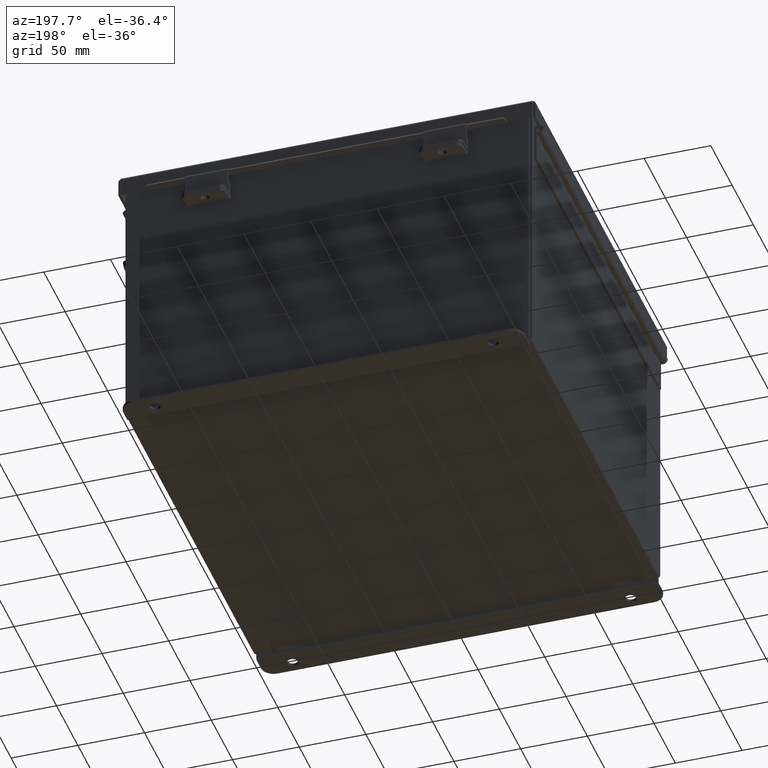
[diagram: clean part render]
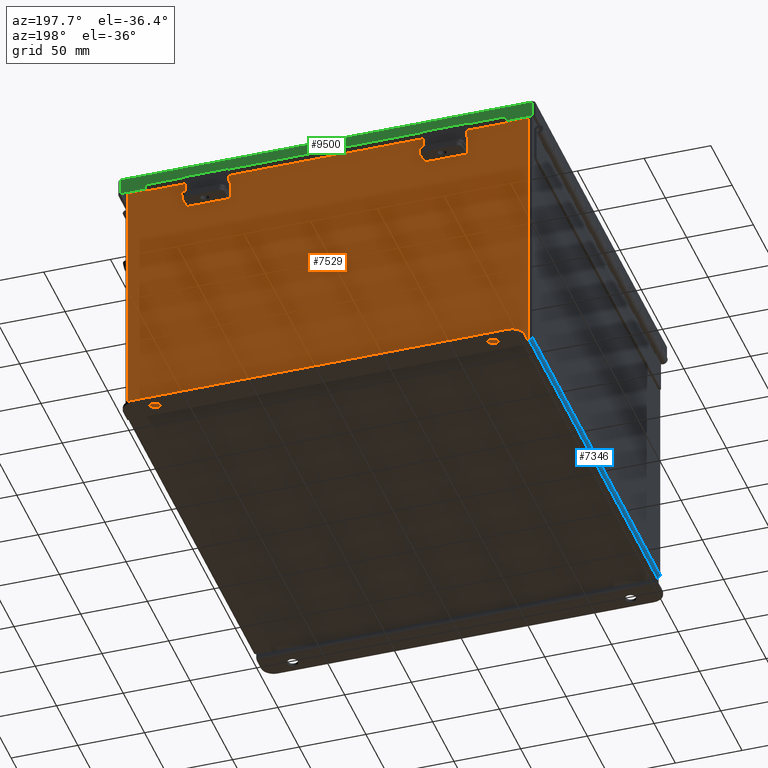
[diagram: same view with three faces highlighted in distinct colors, each labeled with its STEP entity id]
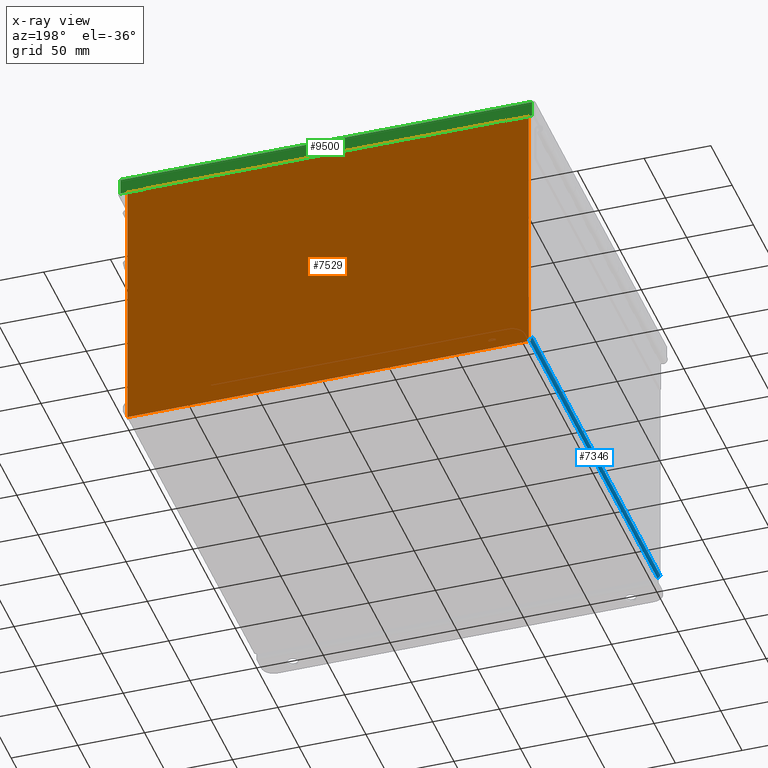
[diagram: x-ray of the same camera — body ghosted, the three highlighted faces saturated]
A machine part, auxiliary view with three faces highlighted in distinct colors.
The next image is the same camera in x-ray (body ghosted, the three faces saturated) — at least one of them is partly hidden behind the body in this view.
Their STEP definitions:

[orange] entity #7529 — the highlighted planar face has unit normal (0, -1, 0).
#30 = LINE ( 'NONE', #17468, #17503 ) ;
#148 = VERTEX_POINT ( 'NONE', #6689 ) ;
#186 = PLANE ( 'NONE',  #2346 ) ;
#289 = EDGE_CURVE ( 'NONE', #148, #4016, #30, .T. ) ;
#360 = VERTEX_POINT ( 'NONE', #8986 ) ;
#683 = VERTEX_POINT ( 'NONE', #6285 ) ;
#903 = DIRECTION ( 'NONE',  ( 0.0000000000000000000, 0.0000000000000000000, -1.000000000000000000 ) ) ;
#1287 = CARTESIAN_POINT ( 'NONE',  ( -5.925300000000001800, 0.0000000000000000000, 3.925299999999999600 ) ) ;
#1379 = DIRECTION ( 'NONE',  ( 0.0000000000000000000, 0.0000000000000000000, 1.000000000000000000 ) ) ;
#1441 = DIRECTION ( 'NONE',  ( 0.0000000000000000000, -0.0000000000000000000, -1.000000000000000000 ) ) ;
#2036 = DIRECTION ( 'NONE',  ( -0.0000000000000000000, 1.000000000000000000, -0.0000000000000000000 ) ) ;
#2168 = VECTOR ( 'NONE', #14634, 39.37007874015748100 ) ;
#2185 = CARTESIAN_POINT ( 'NONE',  ( -5.582300000000000900, 2.185478394931410600E-015, 3.912299999999998800 ) ) ;
#2269 = ORIENTED_EDGE ( 'NONE', *, *, #8044, .T. ) ;
#2346 = AXIS2_PLACEMENT_3D ( 'NONE', #15391, #8791, #1441 ) ;
#2604 = CARTESIAN_POINT ( 'NONE',  ( 5.619649999999998300, 0.0000000000000000000, 3.874949999999998300 ) ) ;
#2973 = LINE ( 'NONE', #16742, #17248 ) ;
#3241 = DIRECTION ( 'NONE',  ( -0.0000000000000000000, 1.000000000000000000, -0.0000000000000000000 ) ) ;
#3813 = CARTESIAN_POINT ( 'NONE',  ( -5.925300000000001800, 0.0000000000000000000, 3.925299999999999600 ) ) ;
#3878 = EDGE_CURVE ( 'NONE', #6510, #6955, #16905, .T. ) ;
#4016 = VERTEX_POINT ( 'NONE', #17597 ) ;
#4087 = EDGE_CURVE ( 'NONE', #5332, #4016, #17114, .T. ) ;
#4160 = CARTESIAN_POINT ( 'NONE',  ( -5.619650000000000000, 0.0000000000000000000, 0.0000000000000000000 ) ) ;
#4175 = VECTOR ( 'NONE', #9428, 39.37007874015748100 ) ;
#4345 = DIRECTION ( 'NONE',  ( 1.000000000000000000, 0.0000000000000000000, 4.610480471308225700E-017 ) ) ;
#4639 = LINE ( 'NONE', #7894, #7869 ) ;
#4854 = CARTESIAN_POINT ( 'NONE',  ( 5.582299999999999200, 0.0000000000000000000, 3.912299999999998800 ) ) ;
#5068 = CARTESIAN_POINT ( 'NONE',  ( -5.619650000000000000, 0.0000000000000000000, 3.874949999999998300 ) ) ;
#5130 = ORIENTED_EDGE ( 'NONE', *, *, #7701, .F. ) ;
#5332 = VERTEX_POINT ( 'NONE', #13482 ) ;
#5436 = VECTOR ( 'NONE', #7773, 39.37007874015748100 ) ;
#5550 = ORIENTED_EDGE ( 'NONE', *, *, #12943, .F. ) ;
#5820 = LINE ( 'NONE', #2185, #2168 ) ;
#6169 = VERTEX_POINT ( 'NONE', #13822 ) ;
#6285 = CARTESIAN_POINT ( 'NONE',  ( -5.619650000000000000, 0.0000000000000000000, 3.925299999999999600 ) ) ;
#6510 = VERTEX_POINT ( 'NONE', #7494 ) ;
#6651 = ORIENTED_EDGE ( 'NONE', *, *, #4087, .F. ) ;
#6689 = CARTESIAN_POINT ( 'NONE',  ( 5.925299999999999100, 0.0000000000000000000, 3.925299999999999600 ) ) ;
#6764 = DIRECTION ( 'NONE',  ( 1.000000000000000000, 0.0000000000000000000, 4.610480471308225700E-017 ) ) ;
#6942 = CIRCLE ( 'NONE', #12318, 0.01867500000000003900 ) ;
#6955 = VERTEX_POINT ( 'NONE', #2604 ) ;
#7494 = CARTESIAN_POINT ( 'NONE',  ( 5.619650000000000000, 0.0000000000000000000, 3.925299999999999600 ) ) ;
#7502 = ORIENTED_EDGE ( 'NONE', *, *, #14782, .F. ) ;
#7529 = ADVANCED_FACE ( 'NONE', ( #14806 ), #186, .F. ) ;
#7701 = EDGE_CURVE ( 'NONE', #6169, #17445, #16758, .T. ) ;
#7773 = DIRECTION ( 'NONE',  ( -2.170286390199955400E-014, 0.0000000000000000000, -1.000000000000000000 ) ) ;
#7869 = VECTOR ( 'NONE', #16187, 39.37007874015748100 ) ;
#7894 = CARTESIAN_POINT ( 'NONE',  ( -5.925300000000001800, 0.0000000000000000000, 3.925299999999999600 ) ) ;
#8044 = EDGE_CURVE ( 'NONE', #5332, #10064, #4639, .T. ) ;
#8079 = CARTESIAN_POINT ( 'NONE',  ( -5.600975000000000000, 0.0000000000000000000, 3.874949999999998300 ) ) ;
#8552 = LINE ( 'NONE', #11011, #15496 ) ;
#8668 = LINE ( 'NONE', #3813, #15606 ) ;
#8756 = ORIENTED_EDGE ( 'NONE', *, *, #9516, .T. ) ;
#8791 = DIRECTION ( 'NONE',  ( 0.0000000000000000000, -1.000000000000000000, 0.0000000000000000000 ) ) ;
#8986 = CARTESIAN_POINT ( 'NONE',  ( -5.582300000000000000, 2.185478394931410600E-015, 3.912299999999998800 ) ) ;
#9174 = LINE ( 'NONE', #4160, #12882 ) ;
#9211 = ORIENTED_EDGE ( 'NONE', *, *, #10862, .T. ) ;
#9428 = DIRECTION ( 'NONE',  ( 0.0000000000000000000, 0.0000000000000000000, 1.000000000000000000 ) ) ;
#9516 = EDGE_CURVE ( 'NONE', #10064, #683, #8668, .T. ) ;
#9707 = EDGE_CURVE ( 'NONE', #6955, #11082, #6942, .T. ) ;
#9890 = ORIENTED_EDGE ( 'NONE', *, *, #16951, .F. ) ;
#9919 = DIRECTION ( 'NONE',  ( 1.000000000000000000, 8.208677865577646300E-017, -0.0000000000000000000 ) ) ;
#10064 = VERTEX_POINT ( 'NONE', #1287 ) ;
#10312 = CARTESIAN_POINT ( 'NONE',  ( 5.600974999999998300, 0.0000000000000000000, 3.874949999999998300 ) ) ;
#10521 = EDGE_CURVE ( 'NONE', #360, #16170, #5820, .T. ) ;
#10714 = ORIENTED_EDGE ( 'NONE', *, *, #3878, .F. ) ;
#10862 = EDGE_CURVE ( 'NONE', #6510, #148, #2973, .T. ) ;
#11011 = CARTESIAN_POINT ( 'NONE',  ( -5.582300000000000000, 0.0000000000000000000, 0.0000000000000000000 ) ) ;
#11082 = VERTEX_POINT ( 'NONE', #11664 ) ;
#11537 = LINE ( 'NONE', #16403, #4175 ) ;
#11664 = CARTESIAN_POINT ( 'NONE',  ( 5.582299999999999200, 0.0000000000000000000, 3.874949999999998300 ) ) ;
#11704 = DIRECTION ( 'NONE',  ( 0.0000000000000000000, 0.0000000000000000000, -1.000000000000000000 ) ) ;
#12068 = ORIENTED_EDGE ( 'NONE', *, *, #289, .T. ) ;
#12084 = EDGE_LOOP ( 'NONE', ( #5550, #5130, #7502, #13543, #9890, #16819, #10714, #9211, #12068, #6651, #2269, #8756 ) ) ;
#12259 = DIRECTION ( 'NONE',  ( 0.0000000000000000000, 0.0000000000000000000, -1.000000000000000000 ) ) ;
#12318 = AXIS2_PLACEMENT_3D ( 'NONE', #10312, #2036, #11704 ) ;
#12398 = DIRECTION ( 'NONE',  ( 0.0000000000000000000, 0.0000000000000000000, -1.000000000000000000 ) ) ;
#12882 = VECTOR ( 'NONE', #1379, 39.37007874015748100 ) ;
#12943 = EDGE_CURVE ( 'NONE', #17445, #683, #9174, .T. ) ;
#13017 = VECTOR ( 'NONE', #9919, 39.37007874015748100 ) ;
#13474 = AXIS2_PLACEMENT_3D ( 'NONE', #8079, #3241, #12259 ) ;
#13482 = CARTESIAN_POINT ( 'NONE',  ( -5.925300000000000000, -1.092739197465705300E-015, -4.099300000000000400 ) ) ;
#13543 = ORIENTED_EDGE ( 'NONE', *, *, #10521, .T. ) ;
#13822 = CARTESIAN_POINT ( 'NONE',  ( -5.582300000000000000, 0.0000000000000000000, 3.874949999999998300 ) ) ;
#14485 = CARTESIAN_POINT ( 'NONE',  ( 5.619649999999914800, 0.0000000000000000000, -1.218404205174261500E-013 ) ) ;
#14634 = DIRECTION ( 'NONE',  ( 1.000000000000000000, 0.0000000000000000000, 0.0000000000000000000 ) ) ;
#14782 = EDGE_CURVE ( 'NONE', #360, #6169, #8552, .T. ) ;
#14806 = FACE_OUTER_BOUND ( 'NONE', #12084, .T. ) ;
#15391 = CARTESIAN_POINT ( 'NONE',  ( 0.0000000000000000000, 0.0000000000000000000, 0.0000000000000000000 ) ) ;
#15496 = VECTOR ( 'NONE', #12398, 39.37007874015748100 ) ;
#15606 = VECTOR ( 'NONE', #6764, 39.37007874015748100 ) ;
#16170 = VERTEX_POINT ( 'NONE', #4854 ) ;
#16187 = DIRECTION ( 'NONE',  ( -0.0000000000000000000, -0.0000000000000000000, 1.000000000000000000 ) ) ;
#16403 = CARTESIAN_POINT ( 'NONE',  ( 5.582299999999999200, 0.0000000000000000000, 0.0000000000000000000 ) ) ;
#16742 = CARTESIAN_POINT ( 'NONE',  ( -5.925300000000001800, 0.0000000000000000000, 3.925299999999999600 ) ) ;
#16758 = CIRCLE ( 'NONE', #13474, 0.01867500000000003900 ) ;
#16819 = ORIENTED_EDGE ( 'NONE', *, *, #9707, .F. ) ;
#16905 = LINE ( 'NONE', #14485, #5436 ) ;
#16951 = EDGE_CURVE ( 'NONE', #11082, #16170, #11537, .T. ) ;
#17114 = LINE ( 'NONE', #17828, #13017 ) ;
#17248 = VECTOR ( 'NONE', #4345, 39.37007874015748100 ) ;
#17445 = VERTEX_POINT ( 'NONE', #5068 ) ;
#17468 = CARTESIAN_POINT ( 'NONE',  ( 5.925299999999999100, 0.0000000000000000000, 3.925299999999999600 ) ) ;
#17503 = VECTOR ( 'NONE', #903, 39.37007874015748100 ) ;
#17597 = CARTESIAN_POINT ( 'NONE',  ( 5.925299999999999100, 0.0000000000000000000, -4.099300000000000400 ) ) ;
#17828 = CARTESIAN_POINT ( 'NONE',  ( -5.925300000000001800, -1.092739197465705300E-015, -4.099300000000000400 ) ) ;

[blue] entity #7346 — the highlighted cylindrical surface (edge-blend (fillet) strip) has radius 2.2276 mm, axis along (0, -1, 0).
#112 = FACE_OUTER_BOUND ( 'NONE', #13552, .T. ) ;
#2317 = DIRECTION ( 'NONE',  ( -1.000000000000000000, 0.0000000000000000000, -3.480030137311043200E-015 ) ) ;
#2412 = EDGE_CURVE ( 'NONE', #13531, #4963, #12267, .T. ) ;
#2809 = CARTESIAN_POINT ( 'NONE',  ( -5.912299999999998300, -5.925299999999999100, -0.07469999999999994700 ) ) ;
#2824 = ORIENTED_EDGE ( 'NONE', *, *, #16659, .F. ) ;
#3020 = VERTEX_POINT ( 'NONE', #2809 ) ;
#3098 = CARTESIAN_POINT ( 'NONE',  ( -5.912299999999998300, -5.925299999999999100, 0.01300000000000015000 ) ) ;
#4282 = CARTESIAN_POINT ( 'NONE',  ( -5.912299999999998300, 5.925300000000000000, 0.01300000000000015000 ) ) ;
#4489 = DIRECTION ( 'NONE',  ( 0.0000000000000000000, 0.0000000000000000000, -1.000000000000000000 ) ) ;
#4610 = CARTESIAN_POINT ( 'NONE',  ( -5.999999999999998200, 5.925300000000000000, 0.01299999999999984300 ) ) ;
#4963 = VERTEX_POINT ( 'NONE', #4610 ) ;
#5267 = CIRCLE ( 'NONE', #5470, 0.08770000000000009700 ) ;
#5470 = AXIS2_PLACEMENT_3D ( 'NONE', #3098, #12767, #4489 ) ;
#5530 = EDGE_CURVE ( 'NONE', #3020, #13531, #12118, .T. ) ;
#5616 = VECTOR ( 'NONE', #15226, 39.37007874015748100 ) ;
#5908 = LINE ( 'NONE', #11958, #8728 ) ;
#6063 = CARTESIAN_POINT ( 'NONE',  ( -5.912299999999998300, -5.925300000000000000, -0.07469999999999994700 ) ) ;
#6172 = DIRECTION ( 'NONE',  ( 0.0000000000000000000, -1.000000000000000000, 0.0000000000000000000 ) ) ;
#7080 = DIRECTION ( 'NONE',  ( 0.0000000000000000000, 0.0000000000000000000, -1.000000000000000000 ) ) ;
#7346 = ADVANCED_FACE ( 'NONE', ( #112 ), #13918, .T. ) ;
#7989 = EDGE_CURVE ( 'NONE', #13252, #4963, #5908, .T. ) ;
#8232 = AXIS2_PLACEMENT_3D ( 'NONE', #15926, #6172, #2317 ) ;
#8728 = VECTOR ( 'NONE', #9155, 39.37007874015748100 ) ;
#9155 = DIRECTION ( 'NONE',  ( -0.0000000000000000000, 1.000000000000000000, -0.0000000000000000000 ) ) ;
#11706 = ORIENTED_EDGE ( 'NONE', *, *, #5530, .F. ) ;
#11921 = AXIS2_PLACEMENT_3D ( 'NONE', #4282, #17176, #7080 ) ;
#11958 = CARTESIAN_POINT ( 'NONE',  ( -5.999999999999998200, 5.925300000000000000, 0.01299999999999984300 ) ) ;
#12118 = LINE ( 'NONE', #6063, #5616 ) ;
#12267 = CIRCLE ( 'NONE', #11921, 0.08770000000000009700 ) ;
#12568 = ORIENTED_EDGE ( 'NONE', *, *, #7989, .T. ) ;
#12767 = DIRECTION ( 'NONE',  ( 0.0000000000000000000, -1.000000000000000000, 0.0000000000000000000 ) ) ;
#13108 = CARTESIAN_POINT ( 'NONE',  ( -5.999999999999998200, -5.925299999999999100, 0.01299999999999984300 ) ) ;
#13252 = VERTEX_POINT ( 'NONE', #13108 ) ;
#13531 = VERTEX_POINT ( 'NONE', #15095 ) ;
#13552 = EDGE_LOOP ( 'NONE', ( #11706, #2824, #12568, #14083 ) ) ;
#13918 = CYLINDRICAL_SURFACE ( 'NONE', #8232, 0.08770000000000026400 ) ;
#14083 = ORIENTED_EDGE ( 'NONE', *, *, #2412, .F. ) ;
#15095 = CARTESIAN_POINT ( 'NONE',  ( -5.912299999999998300, 5.925300000000000000, -0.07470000000000000300 ) ) ;
#15226 = DIRECTION ( 'NONE',  ( -0.0000000000000000000, 1.000000000000000000, -0.0000000000000000000 ) ) ;
#15926 = CARTESIAN_POINT ( 'NONE',  ( -5.912299999999998300, -5.925300000000000000, 0.01300000000000015000 ) ) ;
#16659 = EDGE_CURVE ( 'NONE', #13252, #3020, #5267, .T. ) ;
#17176 = DIRECTION ( 'NONE',  ( -0.0000000000000000000, 1.000000000000000000, -0.0000000000000000000 ) ) ;

[green] entity #9500 — the highlighted planar face has unit normal (-0, -1, -0).
#471 = ORIENTED_EDGE ( 'NONE', *, *, #3509, .F. ) ;
#473 = DIRECTION ( 'NONE',  ( 0.0000000000000000000, 0.0000000000000000000, 1.000000000000000000 ) ) ;
#1221 = ORIENTED_EDGE ( 'NONE', *, *, #7863, .T. ) ;
#1359 = EDGE_CURVE ( 'NONE', #17019, #10824, #7756, .T. ) ;
#1385 = LINE ( 'NONE', #9242, #4634 ) ;
#1821 = CARTESIAN_POINT ( 'NONE',  ( -5.324478932188133000, 6.156250000000002700, 0.4717115427318789300 ) ) ;
#1893 = CARTESIAN_POINT ( 'NONE',  ( 6.156249999999998200, 6.156250000000000000, 0.01299999999999978100 ) ) ;
#2238 = ORIENTED_EDGE ( 'NONE', *, *, #12291, .F. ) ;
#2361 = CARTESIAN_POINT ( 'NONE',  ( 6.074478932188137400, 6.156250000000000000, -3.350199796867980800E-016 ) ) ;
#2597 = DIRECTION ( 'NONE',  ( -2.487713722829918300E-032, -1.000000000000000000, 4.484872552701437000E-015 ) ) ;
#2850 = CARTESIAN_POINT ( 'NONE',  ( 5.324478932188134700, 6.156250000000003600, 0.4717115427318789300 ) ) ;
#3509 = EDGE_CURVE ( 'NONE', #16043, #6073, #10644, .T. ) ;
#3531 = CARTESIAN_POINT ( 'NONE',  ( 1.055630439947707600E-017, 6.156250000000002700, 0.4872999999999997900 ) ) ;
#3565 = VECTOR ( 'NONE', #6901, 39.37007874015748100 ) ;
#3597 = VECTOR ( 'NONE', #12135, 39.37007874015748100 ) ;
#3820 = DIRECTION ( 'NONE',  ( 0.0000000000000000000, 4.484872552701437000E-015, 1.000000000000000000 ) ) ;
#3917 = CARTESIAN_POINT ( 'NONE',  ( 5.324478932188135600, 6.156250000000003600, 0.4717115427318789300 ) ) ;
#3983 = AXIS2_PLACEMENT_3D ( 'NONE', #5325, #2597, #12276 ) ;
#4082 = VECTOR ( 'NONE', #7743, 39.37007874015748100 ) ;
#4634 = VECTOR ( 'NONE', #3820, 39.37007874015748100 ) ;
#4694 = VECTOR ( 'NONE', #9627, 39.37007874015748100 ) ;
#5325 = CARTESIAN_POINT ( 'NONE',  ( 1.325930851584798300E-017, 6.156250000000000000, -2.787081030857980400E-014 ) ) ;
#5598 = DIRECTION ( 'NONE',  ( -0.0000000000000000000, 4.484872552701437000E-015, 1.000000000000000000 ) ) ;
#6073 = VERTEX_POINT ( 'NONE', #14799 ) ;
#6428 = EDGE_CURVE ( 'NONE', #10952, #15924, #17491, .T. ) ;
#6901 = DIRECTION ( 'NONE',  ( 1.000000000000000000, 0.0000000000000000000, 5.546899479521349200E-018 ) ) ;
#7058 = ORIENTED_EDGE ( 'NONE', *, *, #7266, .T. ) ;
#7072 = EDGE_CURVE ( 'NONE', #17019, #15924, #7225, .T. ) ;
#7225 = LINE ( 'NONE', #3531, #3565 ) ;
#7247 = CARTESIAN_POINT ( 'NONE',  ( 6.074478932188137400, 6.156250000000000000, 0.01299999999999977400 ) ) ;
#7266 = EDGE_CURVE ( 'NONE', #11067, #15462, #1385, .T. ) ;
#7721 = ORIENTED_EDGE ( 'NONE', *, *, #6428, .F. ) ;
#7743 = DIRECTION ( 'NONE',  ( 0.0000000000000000000, -7.009925220120992500E-014, -1.000000000000000000 ) ) ;
#7756 = LINE ( 'NONE', #9059, #4082 ) ;
#7863 = EDGE_CURVE ( 'NONE', #15462, #6073, #11343, .T. ) ;
#9059 = CARTESIAN_POINT ( 'NONE',  ( 5.324478932188134700, 6.156250000000004400, 0.4872999999999985700 ) ) ;
#9111 = FACE_OUTER_BOUND ( 'NONE', #13976, .T. ) ;
#9242 = CARTESIAN_POINT ( 'NONE',  ( -6.074478932188137400, 6.156250000000000000, -2.787081030857980400E-014 ) ) ;
#9500 = ADVANCED_FACE ( 'NONE', ( #9111 ), #10883, .F. ) ;
#9627 = DIRECTION ( 'NONE',  ( 1.000000000000000000, -2.487713722829918300E-032, 1.089533968265403200E-046 ) ) ;
#10582 = VECTOR ( 'NONE', #5598, 39.37007874015748100 ) ;
#10644 = LINE ( 'NONE', #16853, #13877 ) ;
#10824 = VERTEX_POINT ( 'NONE', #2850 ) ;
#10883 = PLANE ( 'NONE',  #3983 ) ;
#10945 = LINE ( 'NONE', #3917, #3597 ) ;
#10952 = VERTEX_POINT ( 'NONE', #7247 ) ;
#11067 = VERTEX_POINT ( 'NONE', #17159 ) ;
#11234 = EDGE_CURVE ( 'NONE', #11067, #10952, #12031, .T. ) ;
#11343 = LINE ( 'NONE', #12017, #12656 ) ;
#11477 = DIRECTION ( 'NONE',  ( 1.000000000000000000, 0.0000000000000000000, 5.546899479521349200E-018 ) ) ;
#11579 = CARTESIAN_POINT ( 'NONE',  ( -6.074478932188137400, 6.156250000000002700, 0.4872999999999997300 ) ) ;
#12017 = CARTESIAN_POINT ( 'NONE',  ( 1.055630439947707600E-017, 6.156250000000002700, 0.4872999999999997900 ) ) ;
#12031 = LINE ( 'NONE', #1893, #4694 ) ;
#12135 = DIRECTION ( 'NONE',  ( -1.000000000000000000, -0.0000000000000000000, -0.0000000000000000000 ) ) ;
#12276 = DIRECTION ( 'NONE',  ( 0.0000000000000000000, -4.484872552701437000E-015, -1.000000000000000000 ) ) ;
#12291 = EDGE_CURVE ( 'NONE', #10824, #16043, #10945, .T. ) ;
#12450 = CARTESIAN_POINT ( 'NONE',  ( 5.324478932188134700, 6.156250000000002700, 0.4872999999999997900 ) ) ;
#12656 = VECTOR ( 'NONE', #11477, 39.37007874015748100 ) ;
#13852 = ORIENTED_EDGE ( 'NONE', *, *, #11234, .F. ) ;
#13869 = ORIENTED_EDGE ( 'NONE', *, *, #1359, .F. ) ;
#13877 = VECTOR ( 'NONE', #473, 39.37007874015748100 ) ;
#13976 = EDGE_LOOP ( 'NONE', ( #13869, #15365, #7721, #13852, #7058, #1221, #471, #2238 ) ) ;
#13980 = CARTESIAN_POINT ( 'NONE',  ( 6.074478932188137400, 6.156250000000002700, 0.4872999999999997900 ) ) ;
#14799 = CARTESIAN_POINT ( 'NONE',  ( -5.324478932188132100, 6.156250000000002700, 0.4872999999999997900 ) ) ;
#15365 = ORIENTED_EDGE ( 'NONE', *, *, #7072, .T. ) ;
#15462 = VERTEX_POINT ( 'NONE', #11579 ) ;
#15924 = VERTEX_POINT ( 'NONE', #13980 ) ;
#16043 = VERTEX_POINT ( 'NONE', #1821 ) ;
#16853 = CARTESIAN_POINT ( 'NONE',  ( -5.324478932188133000, 6.156250000000003600, 0.4717115427318789300 ) ) ;
#17019 = VERTEX_POINT ( 'NONE', #12450 ) ;
#17159 = CARTESIAN_POINT ( 'NONE',  ( -6.074478932188137400, 6.156250000000000000, 0.01299999999999978100 ) ) ;
#17491 = LINE ( 'NONE', #2361, #10582 ) ;